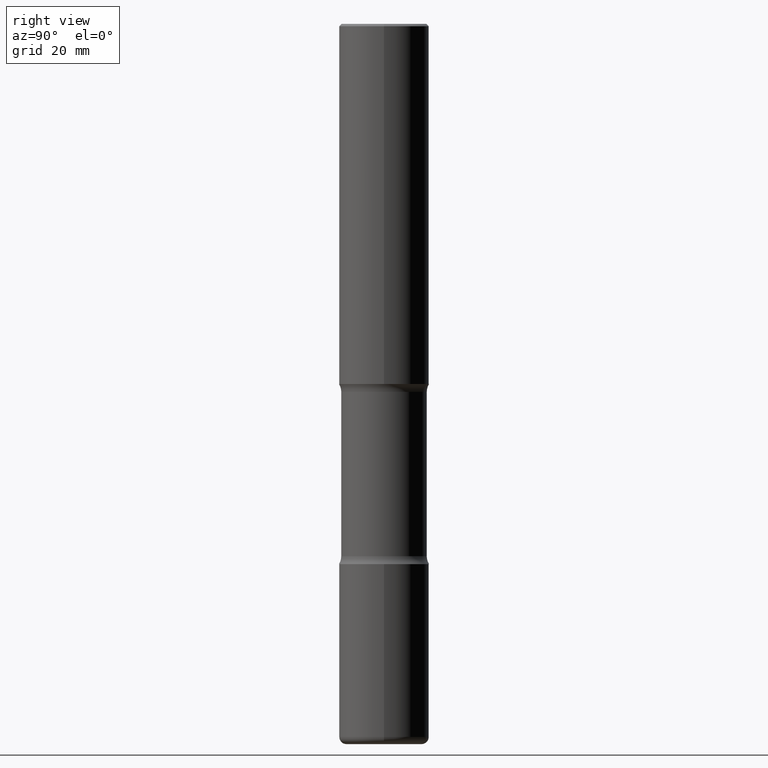
[diagram: clean part render]
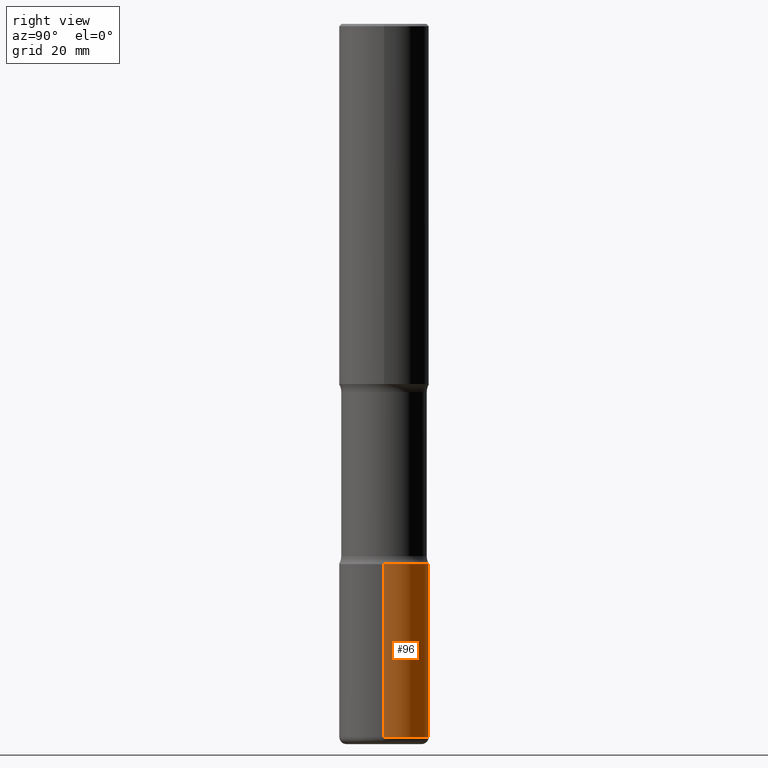
[diagram: same view with one face highlighted and labeled with its STEP entity id]
A machine part, right view. The second image highlights one B-rep face of the part: STEP entity #96.
In plain terms, the highlighted cylindrical surface (partial cylindrical patch) has radius 9.525 mm, axis along (-0, 0, 1).
Its self-contained STEP definition (entity closure, byte-faithful):
#20 = DIRECTION ( 'NONE',  ( -2.445468806185136597E-29, 3.491481338843145583E-15, 1.000000000000000000 ) ) ;
#38 = CARTESIAN_POINT ( 'NONE',  ( 0.3750000000000002220, -2.335801015686062967E-14, -5.939999999999999503 ) ) ;
#41 = CARTESIAN_POINT ( 'NONE',  ( -0.3750000000000004441, 2.664535259100378852E-15, -1.844600658845591840E-29 ) ) ;
#46 = ORIENTED_EDGE ( 'NONE', *, *, #174, .T. ) ;
#76 = VECTOR ( 'NONE', #506, 39.37007874015748143 ) ;
#83 = CYLINDRICAL_SURFACE ( 'NONE', #186, 0.3750000000000004441 ) ;
#92 = VERTEX_POINT ( 'NONE', #471 ) ;
#96 = ADVANCED_FACE ( 'NONE', ( #524 ), #83, .T. ) ;
#118 = VERTEX_POINT ( 'NONE', #38 ) ;
#130 = DIRECTION ( 'NONE',  ( -2.445468806185136877E-29, 3.491481338843145188E-15, 1.000000000000000000 ) ) ;
#132 = EDGE_LOOP ( 'NONE', ( #523, #46, #242, #165 ) ) ;
#138 = VECTOR ( 'NONE', #130, 39.37007874015748143 ) ;
#165 = ORIENTED_EDGE ( 'NONE', *, *, #255, .F. ) ;
#166 = EDGE_CURVE ( 'NONE', #92, #393, #473, .T. ) ;
#171 = CARTESIAN_POINT ( 'NONE',  ( -0.3750000000000002220, -1.807486389362790396E-14, -5.939999999999999503 ) ) ;
#174 = EDGE_CURVE ( 'NONE', #280, #393, #557, .T. ) ;
#186 = AXIS2_PLACEMENT_3D ( 'NONE', #262, #560, #518 ) ;
#207 = CARTESIAN_POINT ( 'NONE',  ( 1.452608470873971031E-28, -2.073939915272828281E-14, -5.939999999999999503 ) ) ;
#242 = ORIENTED_EDGE ( 'NONE', *, *, #166, .F. ) ;
#255 = EDGE_CURVE ( 'NONE', #118, #92, #470, .T. ) ;
#262 = CARTESIAN_POINT ( 'NONE',  ( 0.000000000000000000, 0.000000000000000000, 0.000000000000000000 ) ) ;
#270 = EDGE_CURVE ( 'NONE', #118, #280, #356, .T. ) ;
#280 = VERTEX_POINT ( 'NONE', #171 ) ;
#287 = DIRECTION ( 'NONE',  ( 1.000000000000000000, -6.982962677686263555E-15, 0.000000000000000000 ) ) ;
#295 = DIRECTION ( 'NONE',  ( 1.000000000000000000, -6.982962677686265922E-15, 0.000000000000000000 ) ) ;
#356 = CIRCLE ( 'NONE', #496, 0.3750000000000004996 ) ;
#393 = VERTEX_POINT ( 'NONE', #534 ) ;
#435 = DIRECTION ( 'NONE',  ( -2.445468806185136597E-29, 3.491481338843145583E-15, 1.000000000000000000 ) ) ;
#470 = LINE ( 'NONE', #511, #76 ) ;
#471 = CARTESIAN_POINT ( 'NONE',  ( 0.3750000000000003886, -1.833027702892650691E-14, -4.499999999999999112 ) ) ;
#473 = CIRCLE ( 'NONE', #509, 0.3750000000000003886 ) ;
#496 = AXIS2_PLACEMENT_3D ( 'NONE', #207, #20, #287 ) ;
#506 = DIRECTION ( 'NONE',  ( -2.445468806185136877E-29, 3.491481338843145188E-15, 1.000000000000000000 ) ) ;
#509 = AXIS2_PLACEMENT_3D ( 'NONE', #554, #435, #295 ) ;
#511 = CARTESIAN_POINT ( 'NONE',  ( 0.3750000000000004441, -2.618611004132352777E-15, 1.828566290923478164E-29 ) ) ;
#518 = DIRECTION ( 'NONE',  ( 1.000000000000000000, -6.982962677686265922E-15, 4.876176775795935793E-29 ) ) ;
#523 = ORIENTED_EDGE ( 'NONE', *, *, #270, .T. ) ;
#524 = FACE_OUTER_BOUND ( 'NONE', #132, .T. ) ;
#534 = CARTESIAN_POINT ( 'NONE',  ( -0.3750000000000003886, -1.556099732966084100E-14, -4.499999999999999112 ) ) ;
#554 = CARTESIAN_POINT ( 'NONE',  ( 1.100460962783311244E-28, -1.571166602479415374E-14, -4.499999999999999112 ) ) ;
#557 = LINE ( 'NONE', #41, #138 ) ;
#560 = DIRECTION ( 'NONE',  ( -2.445468806185136597E-29, 3.491481338843145583E-15, 1.000000000000000000 ) ) ;